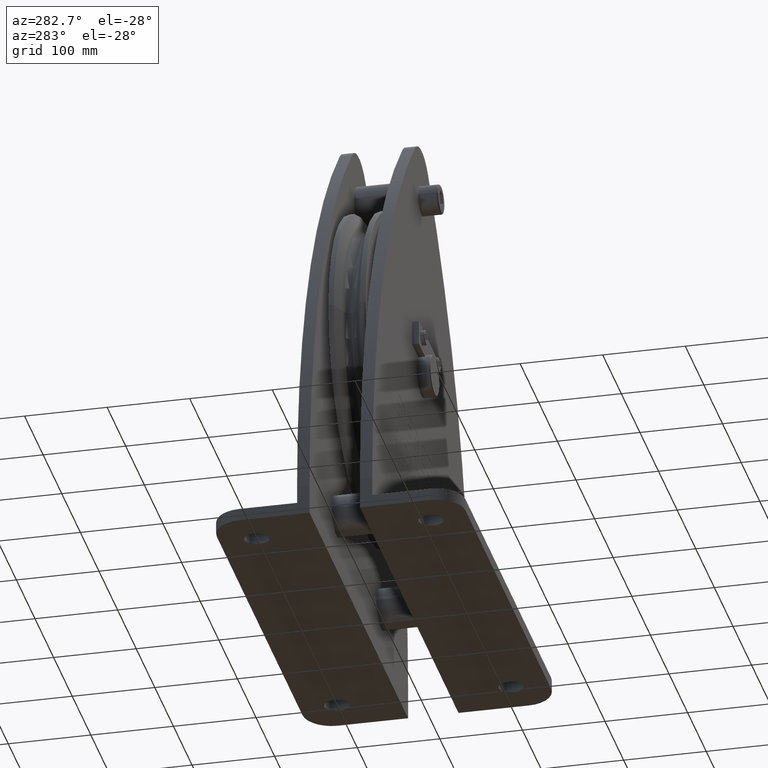
[diagram: clean part render]
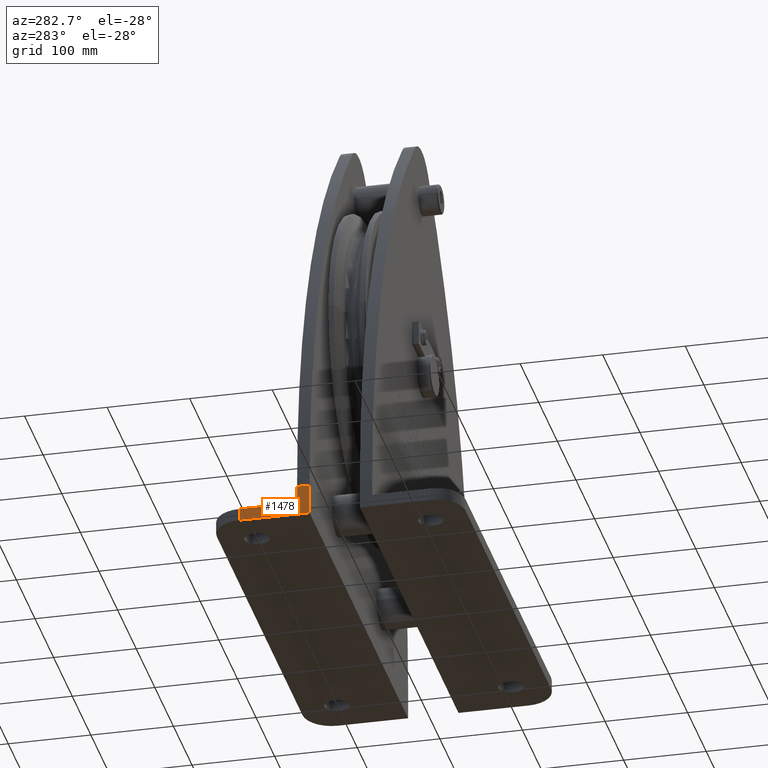
[diagram: same view with one face highlighted and labeled with its STEP entity id]
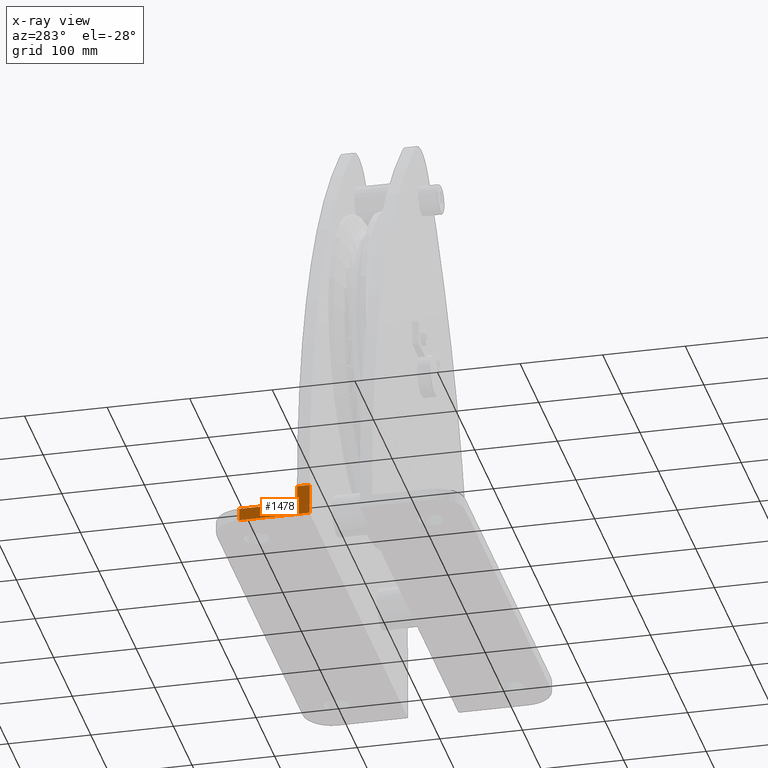
[diagram: x-ray of the same camera — body ghosted, the highlighted face saturated]
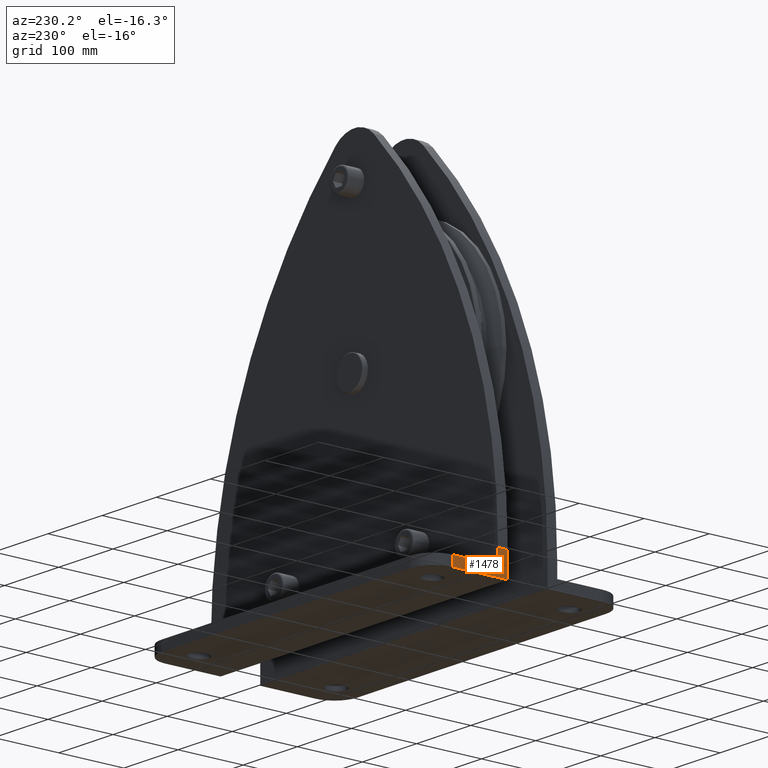
[diagram: same view with one face highlighted and labeled with its STEP entity id]
A machine part, auxiliary view. The second image highlights one B-rep face of the part: STEP entity #1478.
The next image is the same camera in x-ray: the body ghosted, the highlighted face saturated — about 0% of this face is hidden behind the body in this view.
A second angle (auxiliary view) of the same face is appended — the face is thin or edge-on in the first view.
In plain terms, the highlighted planar face has unit normal (-1, 0, 0).
Its self-contained STEP definition (entity closure, byte-faithful):
#1478=ADVANCED_FACE('',(#3228),#3229,.T.);
#3228=FACE_OUTER_BOUND('',#5260,.T.);
#3229=PLANE('',#5261);
#5260=EDGE_LOOP('',(#9927,#9928,#9929,#9930,#9931,#9932));
#5261=AXIS2_PLACEMENT_3D('',#9933,#9934,#9935);
#9927=ORIENTED_EDGE('',*,*,#13806,.T.);
#9928=ORIENTED_EDGE('',*,*,#13807,.T.);
#9929=ORIENTED_EDGE('',*,*,#13808,.F.);
#9930=ORIENTED_EDGE('',*,*,#13801,.F.);
#9931=ORIENTED_EDGE('',*,*,#13780,.T.);
#9932=ORIENTED_EDGE('',*,*,#13809,.T.);
#9933=CARTESIAN_POINT('',(-265.0,30.5,-291.532768555));
#9934=DIRECTION('',(-1.0,0.0,0.0));
#9935=DIRECTION('',(0.0,0.0,1.0));
#13780=EDGE_CURVE('',#17095,#17093,#17096,.T.);
#13801=EDGE_CURVE('',#17095,#17131,#17132,.T.);
#13806=EDGE_CURVE('',#17139,#17140,#17141,.T.);
#13807=EDGE_CURVE('',#17140,#17142,#17143,.T.);
#13808=EDGE_CURVE('',#17131,#17142,#17144,.T.);
#13809=EDGE_CURVE('',#17093,#17139,#17145,.T.);
#17093=VERTEX_POINT('',#24614);
#17095=VERTEX_POINT('',#24616);
#17096=LINE('',#24617,#24618);
#17131=VERTEX_POINT('',#24665);
#17132=LINE('',#24666,#24667);
#17139=VERTEX_POINT('',#24675);
#17140=VERTEX_POINT('',#24676);
#17141=LINE('',#24677,#24678);
#17142=VERTEX_POINT('',#24679);
#17143=LINE('',#24680,#24681);
#17144=LINE('',#24682,#24683);
#17145=LINE('',#24684,#24685);
#24614=CARTESIAN_POINT('',(-265.0,30.5,-273.06553711));
#24616=CARTESIAN_POINT('',(-265.0,30.5,-310.0));
#24617=CARTESIAN_POINT('',(-265.0,30.5,-310.0));
#24618=VECTOR('',#28886,1.0);
#24665=CARTESIAN_POINT('',(-265.0,115.5,-310.0));
#24666=CARTESIAN_POINT('',(-265.0,30.5,-310.0));
#24667=VECTOR('',#28914,1.0);
#24675=CARTESIAN_POINT('',(-265.0,45.5,-273.06553711));
#24676=CARTESIAN_POINT('',(-265.0,45.5,-295.0));
#24677=CARTESIAN_POINT('',(-265.0,45.5,-310.0));
#24678=VECTOR('',#28922,1.0);
#24679=CARTESIAN_POINT('',(-265.0,115.5,-295.0));
#24680=CARTESIAN_POINT('',(-265.0,45.5,-295.0));
#24681=VECTOR('',#28923,1.0);
#24682=CARTESIAN_POINT('',(-265.0,115.5,-310.0));
#24683=VECTOR('',#28924,1.0);
#24684=CARTESIAN_POINT('',(-265.0,30.5,-273.06553711));
#24685=VECTOR('',#28925,1.0);
#28886=DIRECTION('',(0.0,0.0,1.0));
#28914=DIRECTION('',(0.0,1.0,0.0));
#28922=DIRECTION('',(0.0,-0.0,-1.0));
#28923=DIRECTION('',(0.0,1.0,0.0));
#28924=DIRECTION('',(0.0,0.0,1.0));
#28925=DIRECTION('',(0.0,1.0,0.0));